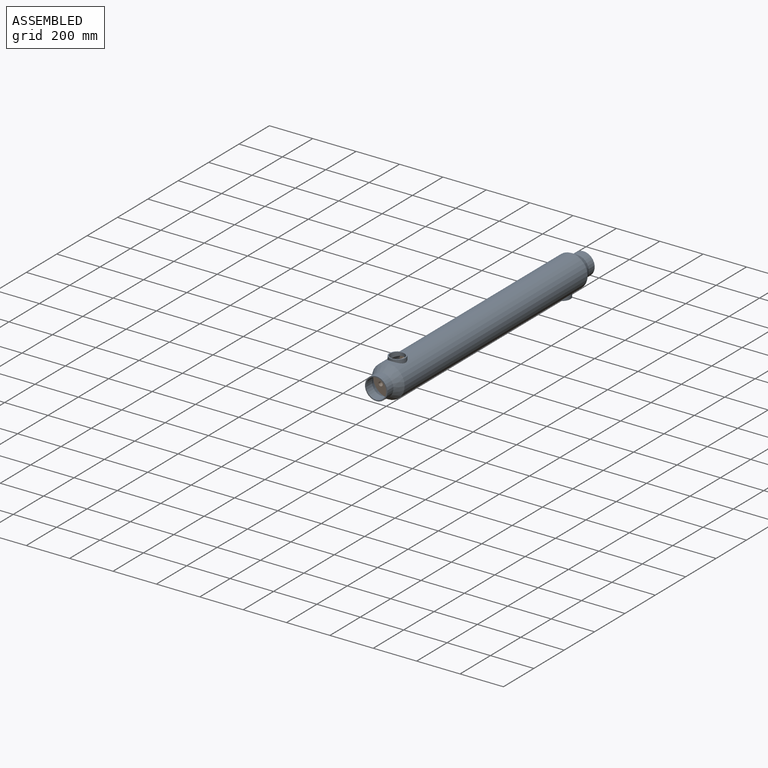
[diagram: assembled view]
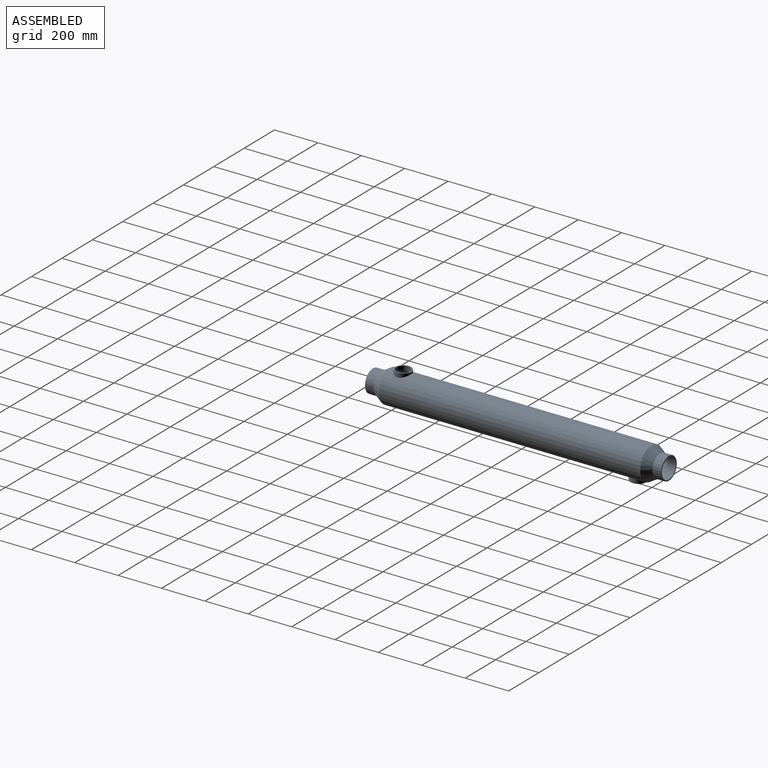
[diagram: assembled view, second angle]
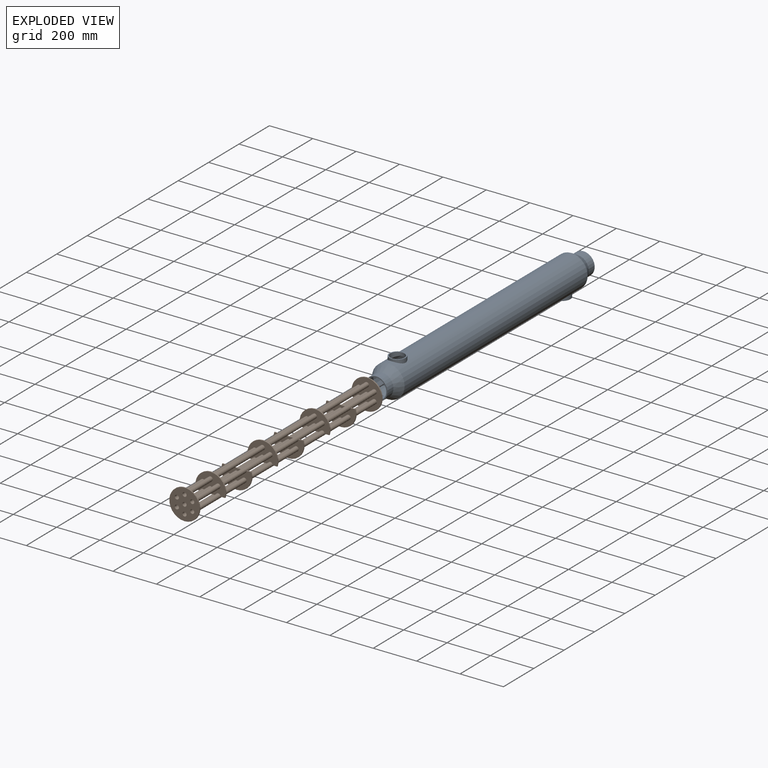
[diagram: exploded view]
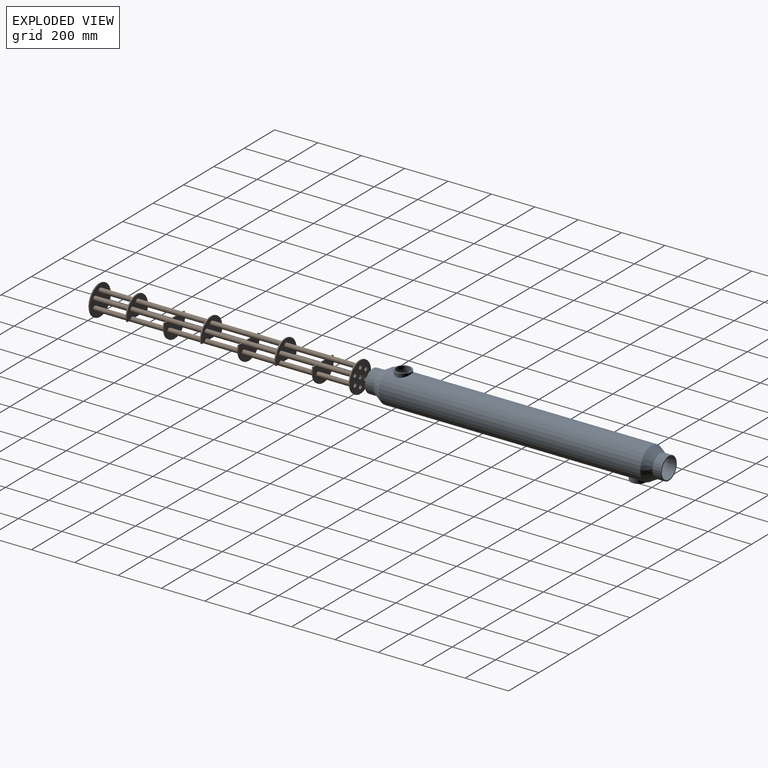
[diagram: exploded view, second angle]
ASSEMBLY  parts=2 mates=2
PART A: 18 faces, bbox 150x1365x170 mm
  f0: cylinder r=75mm len=1205mm, axis (0,-1,0), area 558717mm2, adj f2,f3,f14,f17
  f1: cylinder r=70mm len=1205mm, axis (0,-1,0), area 523166.6mm2, adj f7,f8,f12,f15
  f2: cone r=51.8mm half-angle=30.1deg, axis (0,-1,0), area 18420.3mm2, adj f0,f11
  f3: cone r=51.8mm half-angle=30.1deg, axis (0,1,0), area 18420.3mm2, adj f0,f4
  f4: cylinder r=51.8mm len=103.6mm, axis (0,-1,0), area 13018.8mm2, adj f3,f5
  f5: plane 103.6x103.6mm, normal (0,-1,0), area 1548.8mm2, adj f4,f6
  f6: cylinder r=46.8mm len=93.6mm, axis (0,-1,0), area 11762.2mm2, adj f5,f7
  f7: cone r=70mm half-angle=30.1deg, axis (0,1,0), area 16967.6mm2, adj f1,f6
  f8: cone r=70mm half-angle=30.1deg, axis (0,-1,0), area 16967.6mm2, adj f1,f9
  f9: cylinder r=46.8mm len=93.6mm, axis (0,-1,0), area 11762.2mm2, adj f8,f10
  f10: plane 103.6x103.6mm, normal (0,1,0), area 1548.8mm2, adj f9,f11
  f11: cylinder r=51.8mm len=103.6mm, axis (0,-1,0), area 13018.8mm2, adj f2,f10
  f12: cylinder r=32.5mm len=65mm, axis (0,0,1), area 3866.5mm2, adj f1,f16
  f13: plane 75x75mm, normal (0,0,-1), area 1099.6mm2, adj f14,f15
  f14: cylinder r=37.5mm len=75mm, axis (0,0,-1), area 3518.8mm2, adj f0,f13
  f15: cylinder r=32.5mm len=65mm, axis (0,0,-1), area 3867.9mm2, adj f1,f13
  f16: plane 75x75mm, normal (0,0,1), area 1099.6mm2, adj f12,f17
  f17: cylinder r=37.5mm len=75mm, axis (0,0,1), area 3518.1mm2, adj f0,f16
PART B: 80 faces, bbox 140x1205x140 mm
  f0: plane 140x140mm, normal (0,1,0), area 13409.1mm2, adj f1,f3,f4,f5,f6,f7,f8,f9
  f1: cylinder r=70mm len=140mm, axis (0,1,0), area 2199.1mm2, adj f0,f2
  f2: plane 140x140mm, normal (0,-1,0), area 12969.3mm2, adj f1,f10,f12,f13,f14,f15,f16,f18
  f3: cylinder r=9.5mm len=1205mm, axis (0,-1,0), area 71926.8mm2, adj f0,f11
  f4: cylinder r=9.5mm len=1205mm, axis (0,-1,0), area 71926.8mm2, adj f0,f11
  f5: cylinder r=9.5mm len=1205mm, axis (0,-1,0), area 71926.8mm2, adj f0,f11
  f6: cylinder r=9.5mm len=1205mm, axis (0,-1,0), area 71926.8mm2, adj f0,f11
  f7: cylinder r=9.5mm len=1205mm, axis (0,-1,0), area 71926.8mm2, adj f0,f11
  f8: cylinder r=9.5mm len=1205mm, axis (0,-1,0), area 71926.8mm2, adj f0,f11
  f9: cylinder r=9.5mm len=1205mm, axis (0,-1,0), area 71926.8mm2, adj f0,f11
  f10: cylinder r=10.5mm len=337.86mm, axis (0,-1,0), area 22119.9mm2, adj f2,f51,f55,f57,f58,f59
  f11: plane 140x140mm, normal (0,-1,0), area 13409.1mm2, adj f3,f4,f5,f6,f7,f8,f9,f61
  f12: cylinder r=10.5mm len=166.43mm, axis (0,-1,0), area 10980mm2, adj f2,f57
  f13: cylinder r=10.5mm len=166.43mm, axis (0,-1,0), area 10980mm2, adj f2,f57
  f14: cylinder r=10.5mm len=166.43mm, axis (0,-1,0), area 10980mm2, adj f2,f57
  f15: cylinder r=10.5mm len=337.86mm, axis (0,-1,0), area 22119.9mm2, adj f2,f51,f54,f55,f57,f58
  f16: cylinder r=10.5mm len=337.86mm, axis (0,-1,0), area 22289.8mm2, adj f2,f51
  f17: cylinder r=10.5mm len=166.42mm, axis (0,-1,0), area 10979.3mm2, adj f28,f60
  f18: cylinder r=10.5mm len=166.43mm, axis (0,-1,0), area 10980mm2, adj f2,f57
  f19: cylinder r=10.5mm len=166.43mm, axis (0,-1,0), area 10980mm2, adj f51,f58
  f20: cylinder r=10.5mm len=166.43mm, axis (0,-1,0), area 10980mm2, adj f45,f52
  f21: cylinder r=10.5mm len=166.43mm, axis (0,-1,0), area 10980mm2, adj f39,f46
  f22: cylinder r=10.5mm len=166.43mm, axis (0,-1,0), area 10980mm2, adj f33,f40
  f23: cylinder r=10.5mm len=166.43mm, axis (0,-1,0), area 10980mm2, adj f27,f34
  f24: plane 20.78x5mm, normal (0,0,-1), area 103.9mm2, adj f26,f27,f28,f70
  f25: plane 50.04x5mm, normal (0,0,-1), area 250.2mm2, adj f27,f28,f70,f76
  f26: cylinder r=70mm len=140mm, axis (0,1,0), area 1312.8mm2, adj f24,f27,f28,f29
  f27: plane 140x91mm, normal (0,1,0), area 8839.4mm2, adj f23,f24,f25,f26,f29,f63,f66,f70
  f28: plane 140x91mm, normal (0,-1,0), area 8839.4mm2, adj f17,f24,f25,f26,f29,f64,f67,f70
  f29: plane 20.78x5mm, normal (0,0,-1), area 103.9mm2, adj f26,f27,f28,f76
  f30: plane 20.78x5mm, normal (0,0,1), area 103.9mm2, adj f32,f33,f34,f66
  f31: plane 50.04x5mm, normal (0,0,1), area 250.2mm2, adj f33,f34,f66,f78
  f32: cylinder r=70mm len=140mm, axis (0,1,0), area 1312.8mm2, adj f30,f33,f34,f35
  f33: plane 140x91mm, normal (0,1,0), area 8839.4mm2, adj f22,f30,f31,f32,f35,f66,f69,f72
  f34: plane 140x91mm, normal (0,-1,0), area 8839.4mm2, adj f23,f30,f31,f32,f35,f66,f70,f73
  f35: plane 20.78x5mm, normal (0,0,1), area 103.9mm2, adj f32,f33,f34,f78
  f36: plane 50.04x5mm, normal (0,0,-1), area 250.2mm2, adj f39,f40,f69,f75
  f37: plane 20.78x5mm, normal (0,0,-1), area 103.9mm2, adj f38,f39,f40,f75
  f38: cylinder r=70mm len=140mm, axis (0,1,0), area 1312.8mm2, adj f37,f39,f40,f41
  f39: plane 140x91mm, normal (0,1,0), area 8839.4mm2, adj f21,f36,f37,f38,f41,f62,f65,f69
  f40: plane 140x91mm, normal (0,-1,0), area 8839.4mm2, adj f22,f36,f37,f38,f41,f63,f66,f69
  f41: plane 20.78x5mm, normal (0,0,-1), area 103.9mm2, adj f38,f39,f40,f69
  f42: plane 20.78x5mm, normal (0,0,1), area 103.9mm2, adj f44,f45,f46,f65
  f43: plane 50.04x5mm, normal (0,0,1), area 250.2mm2, adj f45,f46,f65,f77
  f44: cylinder r=70mm len=140mm, axis (0,1,0), area 1312.8mm2, adj f42,f45,f46,f47
  f45: plane 140x91mm, normal (0,1,0), area 8839.4mm2, adj f20,f42,f43,f44,f47,f65,f68,f71
  f46: plane 140x91mm, normal (0,-1,0), area 8839.4mm2, adj f21,f42,f43,f44,f47,f65,f69,f72
  f47: plane 20.78x5mm, normal (0,0,1), area 103.9mm2, adj f44,f45,f46,f77
  f48: plane 50.04x5mm, normal (0,0,-1), area 250.2mm2, adj f51,f52,f68,f74
  f49: plane 20.78x5mm, normal (0,0,-1), area 103.9mm2, adj f50,f51,f52,f74
  f50: cylinder r=70mm len=140mm, axis (0,1,0), area 1312.8mm2, adj f49,f51,f52,f53
  f51: plane 140x91mm, normal (0,1,0), area 8839.4mm2, adj f10,f15,f16,f19,f48,f49,f50,f53
  f52: plane 140x91mm, normal (0,-1,0), area 8839.4mm2, adj f20,f48,f49,f50,f53,f62,f65,f68
  f53: plane 20.78x5mm, normal (0,0,-1), area 103.9mm2, adj f50,f51,f52,f68
  f54: plane 20.78x5mm, normal (0,0,1), area 103.9mm2, adj f15,f56,f57,f58
  f55: plane 50.04x5mm, normal (0,0,1), area 250.2mm2, adj f10,f15,f57,f58
  f56: cylinder r=70mm len=140mm, axis (0,1,0), area 1312.8mm2, adj f54,f57,f58,f59
  f57: plane 140x91mm, normal (0,1,0), area 8839.4mm2, adj f10,f12,f13,f14,f15,f18,f54,f55
  f58: plane 140x91mm, normal (0,-1,0), area 8839.4mm2, adj f10,f15,f19,f54,f55,f56,f59,f68
  f59: plane 20.78x5mm, normal (0,0,1), area 103.9mm2, adj f10,f56,f57,f58
  f60: plane 140x140mm, normal (0,1,0), area 12969.3mm2, adj f17,f61,f64,f67,f70,f73,f76,f79
  f61: cylinder r=70mm len=140mm, axis (0,1,0), area 2199.1mm2, adj f11,f60
  f62: cylinder r=10.5mm len=337.86mm, axis (0,-1,0), area 22289.8mm2, adj f39,f52
  f63: cylinder r=10.5mm len=337.86mm, axis (0,-1,0), area 22289.8mm2, adj f27,f40
  f64: cylinder r=10.5mm len=166.42mm, axis (0,-1,0), area 10979.3mm2, adj f28,f60
  f65: cylinder r=10.5mm len=337.86mm, axis (0,-1,0), area 22119.9mm2, adj f39,f42,f43,f45,f46,f52
  f66: cylinder r=10.5mm len=337.86mm, axis (0,-1,0), area 22119.9mm2, adj f27,f30,f31,f33,f34,f40
  f67: cylinder r=10.5mm len=166.42mm, axis (0,-1,0), area 10979.3mm2, adj f28,f60
  f68: cylinder r=10.5mm len=337.86mm, axis (0,-1,0), area 22119.9mm2, adj f45,f48,f51,f52,f53,f58
  f69: cylinder r=10.5mm len=337.86mm, axis (0,-1,0), area 22119.9mm2, adj f33,f36,f39,f40,f41,f46
  f70: cylinder r=10.5mm len=337.85mm, axis (0,-1,0), area 22119.2mm2, adj f24,f25,f27,f28,f34,f60
  f71: cylinder r=10.5mm len=337.86mm, axis (0,-1,0), area 22289.8mm2, adj f45,f58
  f72: cylinder r=10.5mm len=337.86mm, axis (0,-1,0), area 22289.8mm2, adj f33,f46
  f73: cylinder r=10.5mm len=337.85mm, axis (0,-1,0), area 22289.1mm2, adj f34,f60
  f74: cylinder r=10.5mm len=337.86mm, axis (0,-1,0), area 22119.9mm2, adj f45,f48,f49,f51,f52,f58
  f75: cylinder r=10.5mm len=337.86mm, axis (0,-1,0), area 22119.9mm2, adj f33,f36,f37,f39,f40,f46
  f76: cylinder r=10.5mm len=337.85mm, axis (0,-1,0), area 22119.2mm2, adj f25,f27,f28,f29,f34,f60
  f77: cylinder r=10.5mm len=337.86mm, axis (0,-1,0), area 22119.9mm2, adj f39,f43,f45,f46,f47,f52
  f78: cylinder r=10.5mm len=337.86mm, axis (0,-1,0), area 22119.9mm2, adj f27,f31,f33,f34,f35,f40
  f79: cylinder r=10.5mm len=166.42mm, axis (0,-1,0), area 10979.3mm2, adj f28,f60
PLACE A t=(8.96,2.74,-3.65)mm
PLACE B t=(8.96,602.74,-3.65)mm
MATE fastened A.f0 <-> B.f1  axis (0,-1,0) through (8.96,-599.76,-3.65)mm
MATE cylindrical A.f0 <-> B.f1  axis (0,-1,0) through (8.96,2.74,-3.65)mm
